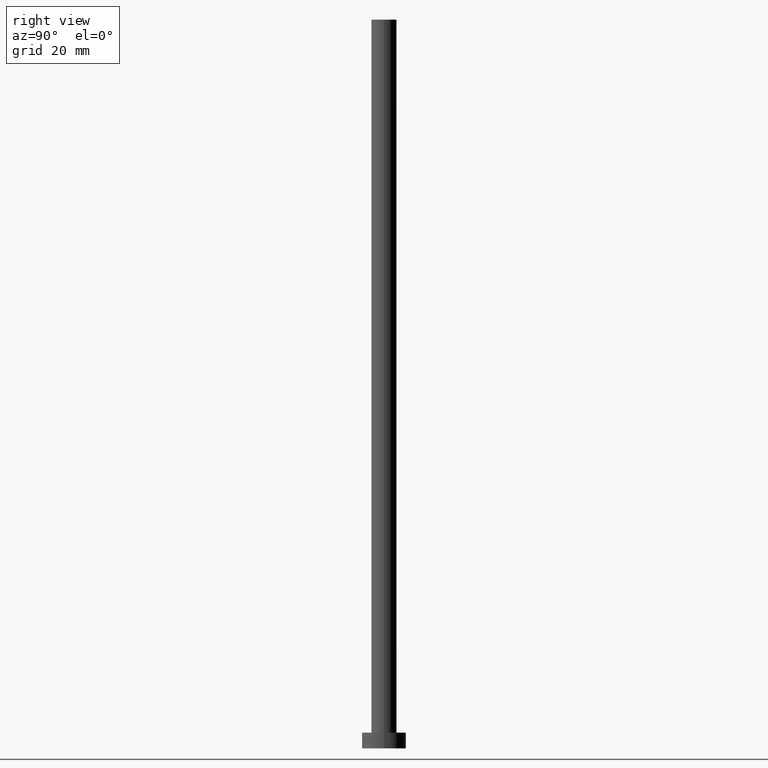
[diagram: clean part render]
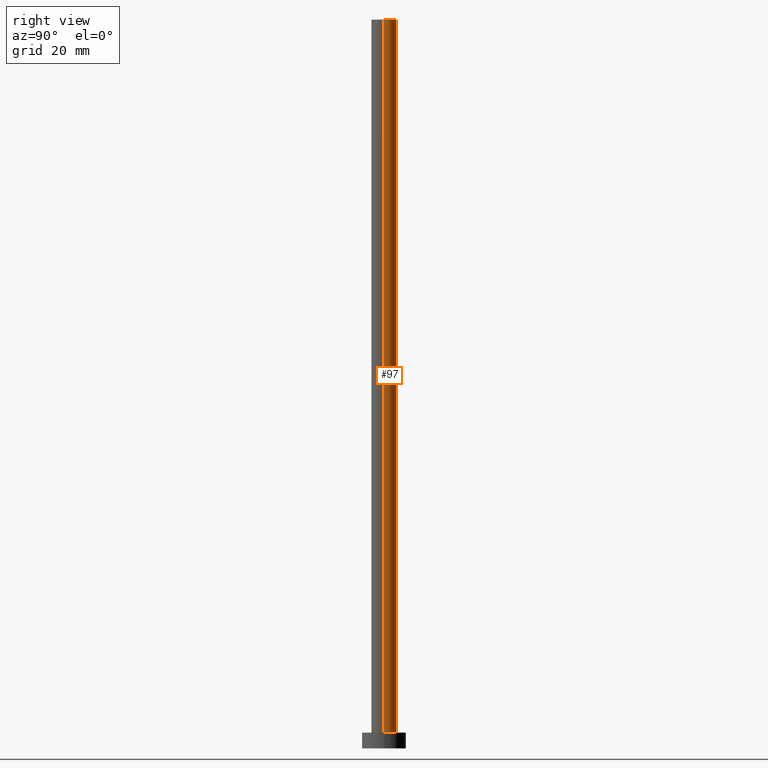
[diagram: same view with one face highlighted and labeled with its STEP entity id]
A machine part, right view. The second image highlights one B-rep face of the part: STEP entity #97.
In plain terms, the highlighted cylindrical surface (edge-blend (fillet) strip) has radius 4 mm, axis along (-0, -0, -1).
Its self-contained STEP definition (entity closure, byte-faithful):
#4 = ORIENTED_EDGE ( 'NONE', *, *, #184, .F. ) ;
#6 = EDGE_LOOP ( 'NONE', ( #4, #103, #166, #165 ) ) ;
#8 = AXIS2_PLACEMENT_3D ( 'NONE', #20, #18, #118 ) ;
#18 = DIRECTION ( 'NONE',  ( 0.000000000000000000, 0.000000000000000000, 1.000000000000000000 ) ) ;
#20 = CARTESIAN_POINT ( 'NONE',  ( 0.000000000000000000, 0.000000000000000000, 231.0000000000000000 ) ) ;
#26 = VERTEX_POINT ( 'NONE', #77 ) ;
#34 = DIRECTION ( 'NONE',  ( -0.000000000000000000, -0.000000000000000000, -1.000000000000000000 ) ) ;
#47 = VERTEX_POINT ( 'NONE', #152 ) ;
#48 = LINE ( 'NONE', #210, #124 ) ;
#54 = DIRECTION ( 'NONE',  ( -0.000000000000000000, -0.000000000000000000, -1.000000000000000000 ) ) ;
#77 = CARTESIAN_POINT ( 'NONE',  ( 4.000000000000000000, 4.898587196589412829E-16, 5.000000000000000000 ) ) ;
#79 = LINE ( 'NONE', #213, #201 ) ;
#97 = ADVANCED_FACE ( 'NONE', ( #171 ), #243, .T. ) ;
#99 = DIRECTION ( 'NONE',  ( 1.000000000000000000, 0.000000000000000000, 0.000000000000000000 ) ) ;
#103 = ORIENTED_EDGE ( 'NONE', *, *, #117, .T. ) ;
#109 = VERTEX_POINT ( 'NONE', #193 ) ;
#117 = EDGE_CURVE ( 'NONE', #121, #26, #48, .T. ) ;
#118 = DIRECTION ( 'NONE',  ( 1.000000000000000000, 0.000000000000000000, 0.000000000000000000 ) ) ;
#121 = VERTEX_POINT ( 'NONE', #176 ) ;
#124 = VECTOR ( 'NONE', #34, 1000.000000000000000 ) ;
#130 = DIRECTION ( 'NONE',  ( -1.000000000000000000, 0.000000000000000000, 0.000000000000000000 ) ) ;
#132 = DIRECTION ( 'NONE',  ( -0.000000000000000000, -0.000000000000000000, -1.000000000000000000 ) ) ;
#152 = CARTESIAN_POINT ( 'NONE',  ( -4.000000000000000000, 0.000000000000000000, 5.000000000000000000 ) ) ;
#160 = CARTESIAN_POINT ( 'NONE',  ( 0.000000000000000000, 0.000000000000000000, 5.000000000000000000 ) ) ;
#165 = ORIENTED_EDGE ( 'NONE', *, *, #226, .F. ) ;
#166 = ORIENTED_EDGE ( 'NONE', *, *, #212, .T. ) ;
#167 = AXIS2_PLACEMENT_3D ( 'NONE', #222, #132, #130 ) ;
#171 = FACE_OUTER_BOUND ( 'NONE', #6, .T. ) ;
#176 = CARTESIAN_POINT ( 'NONE',  ( 4.000000000000000000, 4.898587196589412829E-16, 231.0000000000000000 ) ) ;
#177 = AXIS2_PLACEMENT_3D ( 'NONE', #160, #233, #99 ) ;
#184 = EDGE_CURVE ( 'NONE', #121, #109, #235, .T. ) ;
#193 = CARTESIAN_POINT ( 'NONE',  ( -4.000000000000000000, 0.000000000000000000, 231.0000000000000000 ) ) ;
#201 = VECTOR ( 'NONE', #54, 1000.000000000000000 ) ;
#210 = CARTESIAN_POINT ( 'NONE',  ( 4.000000000000000000, 4.898587196589412829E-16, 231.0000000000000000 ) ) ;
#212 = EDGE_CURVE ( 'NONE', #26, #47, #215, .T. ) ;
#213 = CARTESIAN_POINT ( 'NONE',  ( -4.000000000000000000, 0.000000000000000000, 231.0000000000000000 ) ) ;
#215 = CIRCLE ( 'NONE', #177, 4.000000000000000000 ) ;
#222 = CARTESIAN_POINT ( 'NONE',  ( 0.000000000000000000, 0.000000000000000000, 231.0000000000000000 ) ) ;
#226 = EDGE_CURVE ( 'NONE', #109, #47, #79, .T. ) ;
#233 = DIRECTION ( 'NONE',  ( 0.000000000000000000, 0.000000000000000000, 1.000000000000000000 ) ) ;
#235 = CIRCLE ( 'NONE', #8, 4.000000000000000000 ) ;
#243 = CYLINDRICAL_SURFACE ( 'NONE', #167, 4.000000000000000000 ) ;